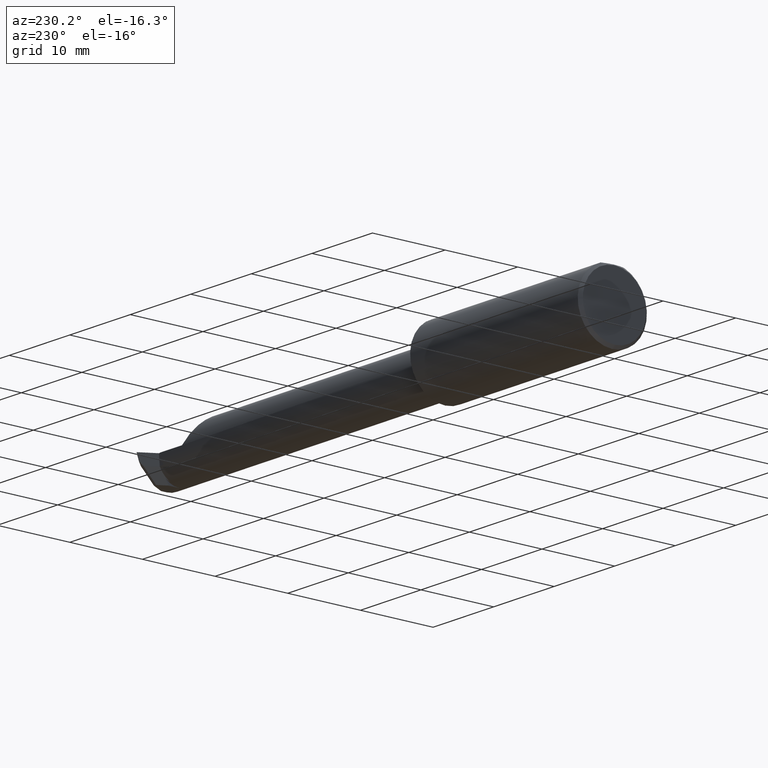
[diagram: clean part render]
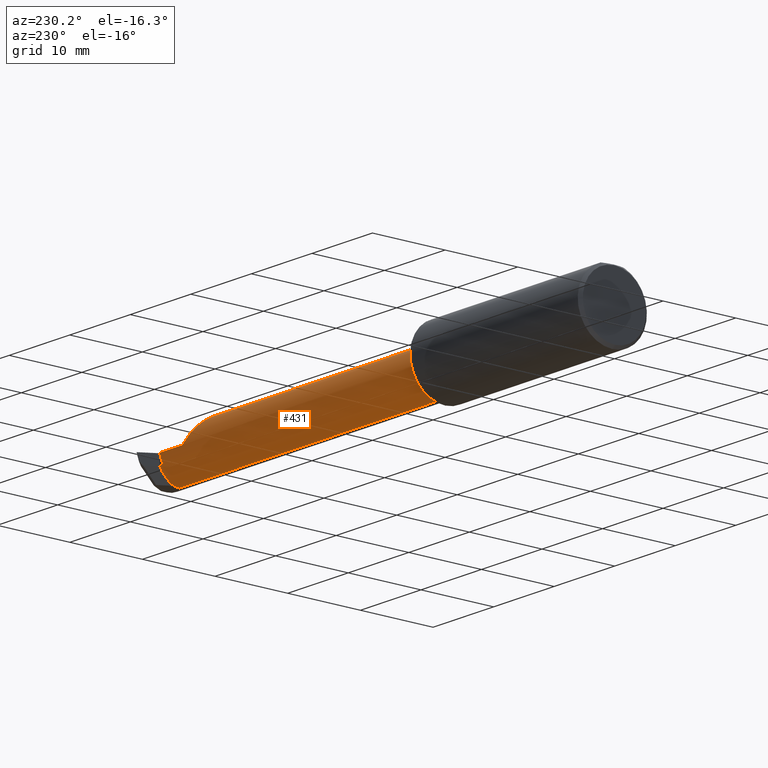
[diagram: same view with one face highlighted and labeled with its STEP entity id]
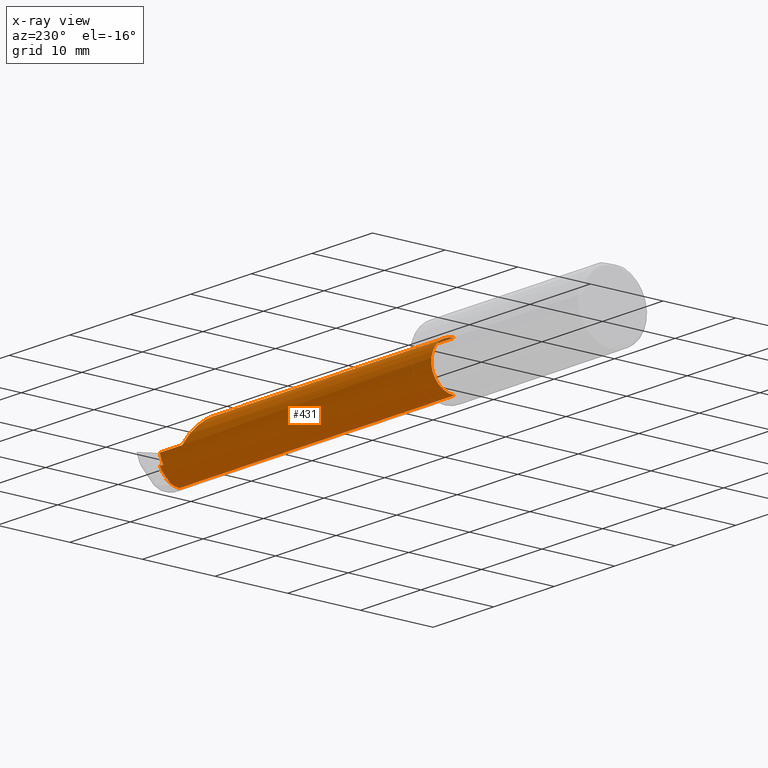
[diagram: x-ray of the same camera — body ghosted, the highlighted face saturated]
A machine part, auxiliary view. The second image highlights one B-rep face of the part: STEP entity #431.
The next image is the same camera in x-ray: the body ghosted, the highlighted face saturated — about 0% of this face is hidden behind the body in this view.
In plain terms, the highlighted cylindrical surface (edge-blend (fillet) strip) has radius 3.175 mm, axis along (-1, -0, -0).
Its self-contained STEP definition (entity closure, byte-faithful):
#12 = EDGE_LOOP ( 'NONE', ( #818, #614, #853, #297, #376, #262, #517, #325, #678, #32, #511, #446, #660 ) ) ;
#25 = CARTESIAN_POINT ( 'NONE',  ( 2.909054084941630869, 0.03909855666502037169, -0.05660582317468507846 ) ) ;
#32 = ORIENTED_EDGE ( 'NONE', *, *, #710, .F. ) ;
#57 = DIRECTION ( 'NONE',  ( 0.000000000000000000, 8.878505979408855953E-16, -1.000000000000000000 ) ) ;
#63 = VERTEX_POINT ( 'NONE', #655 ) ;
#71 = DIRECTION ( 'NONE',  ( -1.000000000000000000, -0.000000000000000000, -0.000000000000000000 ) ) ;
#80 = EDGE_CURVE ( 'NONE', #616, #702, #200, .T. ) ;
#82 = AXIS2_PLACEMENT_3D ( 'NONE', #810, #277, #437 ) ;
#83 = DIRECTION ( 'NONE',  ( 0.000000000000000000, 0.000000000000000000, 1.000000000000000000 ) ) ;
#95 =( BOUNDED_CURVE ( )  B_SPLINE_CURVE ( 3, ( #549, #852, #632, #116 ),
 .UNSPECIFIED., .F., .T. ) 
 B_SPLINE_CURVE_WITH_KNOTS ( ( 4, 4 ),
 ( 1.139420741225466882, 1.570796326794926756 ),
 .UNSPECIFIED. ) 
 CURVE ( )  GEOMETRIC_REPRESENTATION_ITEM ( )  RATIONAL_B_SPLINE_CURVE ( ( 1.000000000000000000, 0.9845529495419456101, 0.9845529495419456101, 1.000000000000000000 ) ) 
 REPRESENTATION_ITEM ( '' )  );
#96 = CARTESIAN_POINT ( 'NONE',  ( 1.130000000000000115, -0.07234999999999998377, 0.1250000000000000000 ) ) ;
#104 = VERTEX_POINT ( 'NONE', #108 ) ;
#108 = CARTESIAN_POINT ( 'NONE',  ( 2.750000000000000444, 0.05264950999903968143, 0.0003499999999995605151 ) ) ;
#116 = CARTESIAN_POINT ( 'NONE',  ( 2.894999999999999574, 0.05265000000000001623, 0.000000000000000000 ) ) ;
#127 = CIRCLE ( 'NONE', #733, 0.1250000000000000000 ) ;
#144 = CARTESIAN_POINT ( 'NONE',  ( 1.130000000000000115, -0.07234999999999996989, -0.1250000000000000000 ) ) ;
#150 = CARTESIAN_POINT ( 'NONE',  ( 2.625350000000000961, -0.07234999999999998377, 0.1250000000000000000 ) ) ;
#180 = VERTEX_POINT ( 'NONE', #520 ) ;
#198 =( BOUNDED_CURVE ( )  B_SPLINE_CURVE ( 3, ( #599, #902, #846, #255 ),
 .UNSPECIFIED., .F., .T. ) 
 B_SPLINE_CURVE_WITH_KNOTS ( ( 4, 4 ),
 ( 4.411180308844298459, 4.459909643144647440 ),
 .UNSPECIFIED. ) 
 CURVE ( )  GEOMETRIC_REPRESENTATION_ITEM ( )  RATIONAL_B_SPLINE_CURVE ( ( 1.000000000000000000, 0.9998021307870514907, 0.9998021307870514907, 1.000000000000000000 ) ) 
 REPRESENTATION_ITEM ( '' )  );
#200 = LINE ( 'NONE', #559, #522 ) ;
#207 = CARTESIAN_POINT ( 'NONE',  ( 2.913734622005793362, 0.008361908784099847045, -0.09544939905744401210 ) ) ;
#215 = DIRECTION ( 'NONE',  ( -1.000000000000000000, -0.000000000000000000, -0.000000000000000000 ) ) ;
#219 = EDGE_CURVE ( 'NONE', #592, #605, #449, .T. ) ;
#243 = DIRECTION ( 'NONE',  ( -1.000000000000000000, -0.000000000000000000, -0.000000000000000000 ) ) ;
#255 = CARTESIAN_POINT ( 'NONE',  ( 2.908768555666733313, 0.04119893105087690799, -0.05226509597430400306 ) ) ;
#257 = EDGE_CURVE ( 'NONE', #616, #63, #676, .T. ) ;
#262 = ORIENTED_EDGE ( 'NONE', *, *, #929, .T. ) ;
#269 = DIRECTION ( 'NONE',  ( 1.000000000000000000, 0.000000000000000000, 0.000000000000000000 ) ) ;
#274 = CARTESIAN_POINT ( 'NONE',  ( 2.909054084941630869, -0.01574417682531562002, -0.1114485566650206955 ) ) ;
#277 = DIRECTION ( 'NONE',  ( -1.000000000000000000, -0.000000000000000000, -0.000000000000000000 ) ) ;
#282 = CARTESIAN_POINT ( 'NONE',  ( 2.911507999980800676, -0.007106926527361681623, -0.1070616118923666676 ) ) ;
#285 = CARTESIAN_POINT ( 'NONE',  ( 2.913075199203175814, 0.0009645913569538208795, -0.1017045626867875557 ) ) ;
#297 = ORIENTED_EDGE ( 'NONE', *, *, #847, .F. ) ;
#298 = CARTESIAN_POINT ( 'NONE',  ( 2.913734622005793362, 0.008361908784099847045, -0.09544939905744401210 ) ) ;
#299 = CARTESIAN_POINT ( 'NONE',  ( 2.917651630723346656, -0.04248585645573352970, -0.1250000000000000555 ) ) ;
#325 = ORIENTED_EDGE ( 'NONE', *, *, #438, .F. ) ;
#348 = CARTESIAN_POINT ( 'NONE',  ( 2.909054084941630869, 0.03909855666502037169, -0.05660582317468507846 ) ) ;
#354 = CARTESIAN_POINT ( 'NONE',  ( 2.909054084941630869, -0.07234999999999998377, 0.000000000000000000 ) ) ;
#365 = CARTESIAN_POINT ( 'NONE',  ( 2.916100958887600125, -0.01444220765322422675, -0.1147325352947247412 ) ) ;
#376 = ORIENTED_EDGE ( 'NONE', *, *, #809, .F. ) ;
#390 = VERTEX_POINT ( 'NONE', #458 ) ;
#431 = ADVANCED_FACE ( 'NONE', ( #764 ), #920, .T. ) ;
#432 = LINE ( 'NONE', #578, #903 ) ;
#437 = DIRECTION ( 'NONE',  ( 0.000000000000000000, 0.000000000000000000, 1.000000000000000000 ) ) ;
#438 = EDGE_CURVE ( 'NONE', #605, #180, #95, .T. ) ;
#443 = CARTESIAN_POINT ( 'NONE',  ( 2.909054084941630869, -0.01574417682531562002, -0.1114485566650206955 ) ) ;
#446 = ORIENTED_EDGE ( 'NONE', *, *, #598, .T. ) ;
#449 = LINE ( 'NONE', #595, #663 ) ;
#458 = CARTESIAN_POINT ( 'NONE',  ( 2.625350000000000961, -0.07234999999999998377, 0.1250000000000000000 ) ) ;
#477 = LINE ( 'NONE', #940, #699 ) ;
#482 = EDGE_CURVE ( 'NONE', #921, #788, #609, .T. ) ;
#495 = DIRECTION ( 'NONE',  ( -1.000000000000000000, -0.000000000000000000, -0.000000000000000000 ) ) ;
#496 = CARTESIAN_POINT ( 'NONE',  ( 2.909161207634519020, 0.03890704989722473112, -0.05698287188920624774 ) ) ;
#499 = CARTESIAN_POINT ( 'NONE',  ( 2.909370448767460093, 0.03851830851078684448, -0.05773402954893229466 ) ) ;
#505 = CIRCLE ( 'NONE', #82, 0.1250000000000000000 ) ;
#511 = ORIENTED_EDGE ( 'NONE', *, *, #482, .T. ) ;
#517 = ORIENTED_EDGE ( 'NONE', *, *, #800, .T. ) ;
#520 = CARTESIAN_POINT ( 'NONE',  ( 2.894999999999999574, 0.05265000000000001623, 0.000000000000000000 ) ) ;
#521 = VERTEX_POINT ( 'NONE', #274 ) ;
#522 = VECTOR ( 'NONE', #860, 39.37007874015748143 ) ;
#526 = CARTESIAN_POINT ( 'NONE',  ( 2.908768555666733313, 0.04119893105087690799, -0.05226509597430400306 ) ) ;
#547 = CARTESIAN_POINT ( 'NONE',  ( 2.750000000000000444, 0.05265000000000000235, -6.429183357567478880E-17 ) ) ;
#549 = CARTESIAN_POINT ( 'NONE',  ( 2.885548931050876398, 0.04119893105087691493, -0.05226509597430395448 ) ) ;
#559 = CARTESIAN_POINT ( 'NONE',  ( 1.105000000000000204, -0.07234999999999996989, -0.1250000000000000000 ) ) ;
#565 = CARTESIAN_POINT ( 'NONE',  ( 2.676939441571128508, 0.05244493963352150206, 0.07341055842887220240 ) ) ;
#578 = CARTESIAN_POINT ( 'NONE',  ( 1.105000000000000204, -0.07234999999999998377, 0.1250000000000000000 ) ) ;
#584 = CARTESIAN_POINT ( 'NONE',  ( 1.130000000000000115, -0.07234999999999998377, 0.000000000000000000 ) ) ;
#592 = VERTEX_POINT ( 'NONE', #526 ) ;
#595 = CARTESIAN_POINT ( 'NONE',  ( 1.105000000000000204, 0.04119893105087692881, -0.05226509597430394755 ) ) ;
#598 = EDGE_CURVE ( 'NONE', #788, #521, #917, .T. ) ;
#599 = CARTESIAN_POINT ( 'NONE',  ( 2.909370448767460093, 0.03851830851078684448, -0.05773402954893229466 ) ) ;
#605 = VERTEX_POINT ( 'NONE', #897 ) ;
#609 =( BOUNDED_CURVE ( )  B_SPLINE_CURVE ( 3, ( #499, #807, #496, #348 ),
 .UNSPECIFIED., .F., .T. ) 
 B_SPLINE_CURVE_WITH_KNOTS ( ( 4, 4 ),
 ( 3.446885897117435427, 3.457035344740365002 ),
 .UNSPECIFIED. ) 
 CURVE ( )  GEOMETRIC_REPRESENTATION_ITEM ( )  RATIONAL_B_SPLINE_CURVE ( ( 1.000000000000000000, 0.9999914157445015661, 0.9999914157445015661, 1.000000000000000000 ) ) 
 REPRESENTATION_ITEM ( '' )  );
#614 = ORIENTED_EDGE ( 'NONE', *, *, #80, .T. ) ;
#616 = VERTEX_POINT ( 'NONE', #955 ) ;
#630 = CARTESIAN_POINT ( 'NONE',  ( 2.625350000000000517, 0.0007108448279454899175, 0.1250000000000000000 ) ) ;
#632 = CARTESIAN_POINT ( 'NONE',  ( 2.891724317005159861, 0.05265000000000000929, -0.01811476426934099243 ) ) ;
#643 = EDGE_CURVE ( 'NONE', #521, #63, #645, .T. ) ;
#645 =( BOUNDED_CURVE ( )  B_SPLINE_CURVE ( 3, ( #443, #282, #285, #298 ),
 .UNSPECIFIED., .F., .T. ) 
 B_SPLINE_CURVE_WITH_KNOTS ( ( 4, 4 ),
 ( 2.826149962439222119, 3.058127945359554900 ),
 .UNSPECIFIED. ) 
 CURVE ( )  GEOMETRIC_REPRESENTATION_ITEM ( )  RATIONAL_B_SPLINE_CURVE ( ( 1.000000000000000000, 0.9955205433440610374, 0.9955205433440610374, 1.000000000000000000 ) ) 
 REPRESENTATION_ITEM ( '' )  );
#655 = CARTESIAN_POINT ( 'NONE',  ( 2.913734622005793362, 0.008361908784099847045, -0.09544939905744401210 ) ) ;
#660 = ORIENTED_EDGE ( 'NONE', *, *, #643, .T. ) ;
#663 = VECTOR ( 'NONE', #71, 39.37007874015748143 ) ;
#672 = EDGE_CURVE ( 'NONE', #702, #767, #127, .T. ) ;
#676 =( BOUNDED_CURVE ( )  B_SPLINE_CURVE ( 3, ( #889, #299, #365, #207 ),
 .UNSPECIFIED., .F., .T. ) 
 B_SPLINE_CURVE_WITH_KNOTS ( ( 4, 4 ),
 ( 3.320488901919211866, 4.022422357086417932 ),
 .UNSPECIFIED. ) 
 CURVE ( )  GEOMETRIC_REPRESENTATION_ITEM ( )  RATIONAL_B_SPLINE_CURVE ( ( 1.000000000000000000, 0.9593605234527315950, 0.9593605234527315950, 1.000000000000000000 ) ) 
 REPRESENTATION_ITEM ( '' )  );
#678 = ORIENTED_EDGE ( 'NONE', *, *, #219, .F. ) ;
#699 = VECTOR ( 'NONE', #269, 39.37007874015748143 ) ;
#702 = VERTEX_POINT ( 'NONE', #144 ) ;
#710 = EDGE_CURVE ( 'NONE', #921, #592, #198, .T. ) ;
#733 = AXIS2_PLACEMENT_3D ( 'NONE', #584, #882, #888 ) ;
#748 =( BOUNDED_CURVE ( )  B_SPLINE_CURVE ( 3, ( #783, #565, #630, #150 ),
 .UNSPECIFIED., .F., .T. ) 
 B_SPLINE_CURVE_WITH_KNOTS ( ( 4, 4 ),
 ( 4.715188984043368059, 6.283185307179586232 ),
 .UNSPECIFIED. ) 
 CURVE ( )  GEOMETRIC_REPRESENTATION_ITEM ( )  RATIONAL_B_SPLINE_CURVE ( ( 1.000000000000000000, 0.8053973591226792905, 0.8053973591226792905, 1.000000000000000000 ) ) 
 REPRESENTATION_ITEM ( '' )  );
#764 = FACE_OUTER_BOUND ( 'NONE', #12, .T. ) ;
#767 = VERTEX_POINT ( 'NONE', #96 ) ;
#769 = CARTESIAN_POINT ( 'NONE',  ( 1.105000000000000204, -0.07234999999999998377, 0.000000000000000000 ) ) ;
#771 = VERTEX_POINT ( 'NONE', #547 ) ;
#783 = CARTESIAN_POINT ( 'NONE',  ( 2.750000000000000444, 0.05264950999903968143, 0.0003499999999995605151 ) ) ;
#788 = VERTEX_POINT ( 'NONE', #25 ) ;
#800 = EDGE_CURVE ( 'NONE', #771, #180, #477, .T. ) ;
#807 = CARTESIAN_POINT ( 'NONE',  ( 2.909266663148385668, 0.03871363218546649415, -0.05735894390892023326 ) ) ;
#809 = EDGE_CURVE ( 'NONE', #104, #390, #748, .T. ) ;
#810 = CARTESIAN_POINT ( 'NONE',  ( 2.750000000000000444, -0.07234999999999998377, 0.000000000000000000 ) ) ;
#818 = ORIENTED_EDGE ( 'NONE', *, *, #257, .F. ) ;
#842 = AXIS2_PLACEMENT_3D ( 'NONE', #769, #243, #83 ) ;
#846 = CARTESIAN_POINT ( 'NONE',  ( 2.908970555950630921, 0.04034989926761196194, -0.05410966642080912437 ) ) ;
#847 = EDGE_CURVE ( 'NONE', #390, #767, #432, .T. ) ;
#852 = CARTESIAN_POINT ( 'NONE',  ( 2.888524533471080513, 0.04877309019558892511, -0.03580979902212556854 ) ) ;
#853 = ORIENTED_EDGE ( 'NONE', *, *, #672, .T. ) ;
#860 = DIRECTION ( 'NONE',  ( -1.000000000000000000, -0.000000000000000000, -0.000000000000000000 ) ) ;
#882 = DIRECTION ( 'NONE',  ( 1.000000000000000000, 0.000000000000000000, 0.000000000000000000 ) ) ;
#888 = DIRECTION ( 'NONE',  ( 0.000000000000000000, 0.000000000000000000, -1.000000000000000000 ) ) ;
#889 = CARTESIAN_POINT ( 'NONE',  ( 2.918197582037928228, -0.07235000000000001152, -0.1250000000000000000 ) ) ;
#897 = CARTESIAN_POINT ( 'NONE',  ( 2.885548931050876398, 0.04119893105087691493, -0.05226509597430395448 ) ) ;
#902 = CARTESIAN_POINT ( 'NONE',  ( 2.909171226690768552, 0.03945618158170016015, -0.05593300506160034380 ) ) ;
#903 = VECTOR ( 'NONE', #495, 39.37007874015748143 ) ;
#917 = CIRCLE ( 'NONE', #982, 0.1250000000000000000 ) ;
#920 = CYLINDRICAL_SURFACE ( 'NONE', #842, 0.1250000000000000000 ) ;
#921 = VERTEX_POINT ( 'NONE', #957 ) ;
#929 = EDGE_CURVE ( 'NONE', #104, #771, #505, .T. ) ;
#940 = CARTESIAN_POINT ( 'NONE',  ( 1.105000000000000204, 0.05265000000000001623, -6.429183357567480113E-17 ) ) ;
#955 = CARTESIAN_POINT ( 'NONE',  ( 2.918197582037928228, -0.07235000000000001152, -0.1250000000000000000 ) ) ;
#957 = CARTESIAN_POINT ( 'NONE',  ( 2.909370448767460093, 0.03851830851078684448, -0.05773402954893229466 ) ) ;
#982 = AXIS2_PLACEMENT_3D ( 'NONE', #354, #215, #57 ) ;